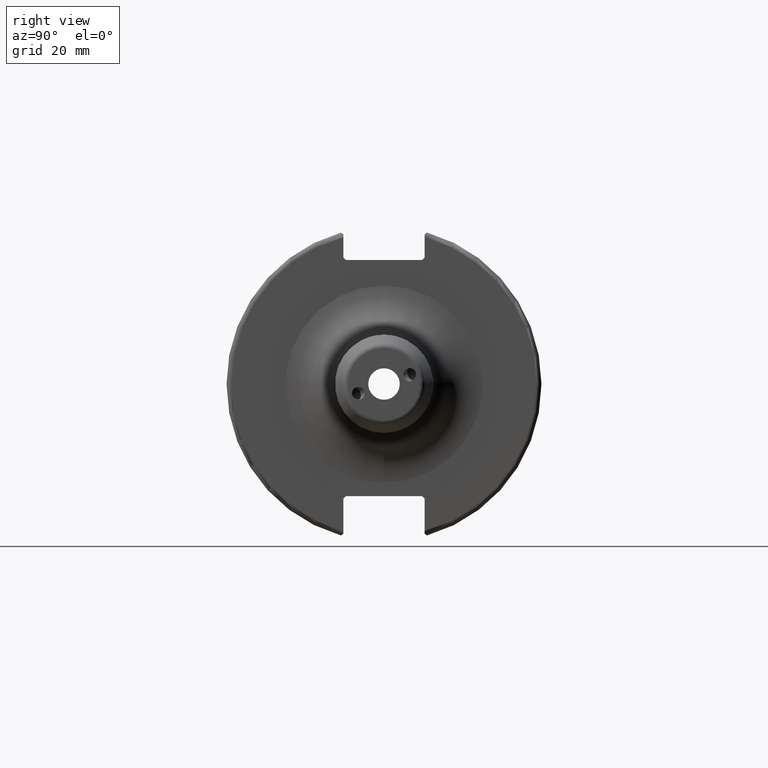
[diagram: clean part render]
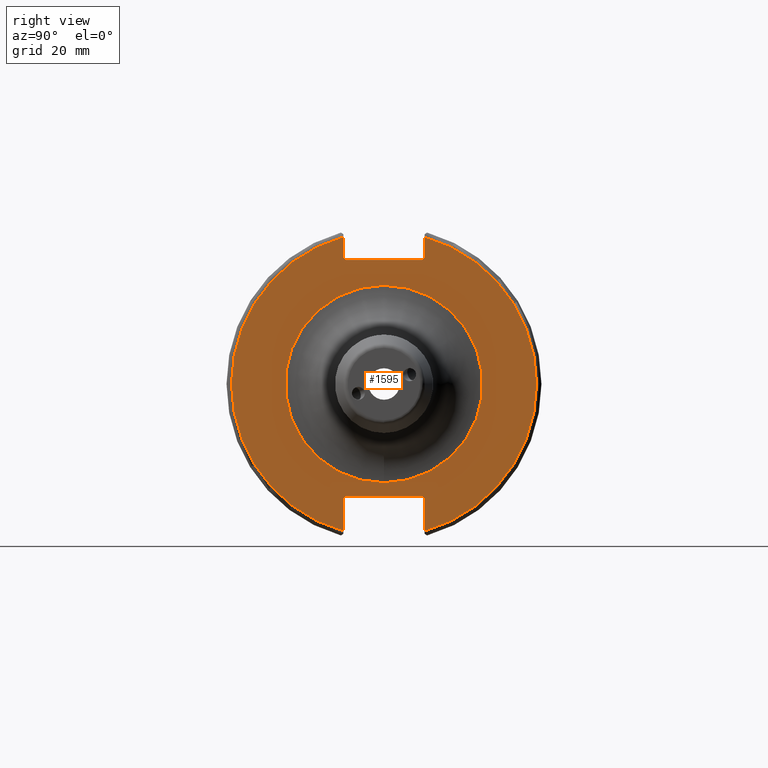
[diagram: same view with one face highlighted and labeled with its STEP entity id]
A machine part, right view. The second image highlights one B-rep face of the part: STEP entity #1595.
In plain terms, the highlighted planar face has unit normal (1, 0, 0).
Its self-contained STEP definition (entity closure, byte-faithful):
#64=FACE_BOUND('',#303,.T.);
#77=PLANE('',#1739);
#128=CIRCLE('',#1738,19.906);
#129=CIRCLE('',#1740,30.75);
#130=CIRCLE('',#1741,30.75);
#202=FACE_OUTER_BOUND('',#302,.T.);
#302=EDGE_LOOP('',(#1154,#1155,#1156,#1157,#1158,#1159,#1160,#1161,#1162,
#1163,#1164,#1165));
#303=EDGE_LOOP('',(#1166));
#439=LINE('',#2698,#538);
#440=LINE('',#2700,#539);
#441=LINE('',#2702,#540);
#442=LINE('',#2704,#541);
#443=LINE('',#2706,#542);
#444=LINE('',#2710,#543);
#445=LINE('',#2712,#544);
#446=LINE('',#2714,#545);
#447=LINE('',#2716,#546);
#448=LINE('',#2717,#547);
#538=VECTOR('',#1991,10.);
#539=VECTOR('',#1992,10.);
#540=VECTOR('',#1993,10.);
#541=VECTOR('',#1994,10.);
#542=VECTOR('',#1995,10.);
#543=VECTOR('',#1998,10.);
#544=VECTOR('',#1999,10.);
#545=VECTOR('',#2000,10.);
#546=VECTOR('',#2001,10.);
#547=VECTOR('',#2002,10.);
#682=VERTEX_POINT('',#2690);
#683=VERTEX_POINT('',#2694);
#684=VERTEX_POINT('',#2695);
#685=VERTEX_POINT('',#2697);
#686=VERTEX_POINT('',#2699);
#687=VERTEX_POINT('',#2701);
#688=VERTEX_POINT('',#2703);
#689=VERTEX_POINT('',#2705);
#690=VERTEX_POINT('',#2707);
#691=VERTEX_POINT('',#2709);
#692=VERTEX_POINT('',#2711);
#693=VERTEX_POINT('',#2713);
#694=VERTEX_POINT('',#2715);
#861=EDGE_CURVE('',#682,#682,#128,.T.);
#862=EDGE_CURVE('',#683,#684,#129,.T.);
#863=EDGE_CURVE('',#683,#685,#439,.T.);
#864=EDGE_CURVE('',#686,#685,#440,.T.);
#865=EDGE_CURVE('',#686,#687,#441,.T.);
#866=EDGE_CURVE('',#688,#687,#442,.T.);
#867=EDGE_CURVE('',#688,#689,#443,.T.);
#868=EDGE_CURVE('',#690,#689,#130,.T.);
#869=EDGE_CURVE('',#690,#691,#444,.T.);
#870=EDGE_CURVE('',#692,#691,#445,.T.);
#871=EDGE_CURVE('',#692,#693,#446,.T.);
#872=EDGE_CURVE('',#694,#693,#447,.T.);
#873=EDGE_CURVE('',#694,#684,#448,.T.);
#1154=ORIENTED_EDGE('',*,*,#862,.F.);
#1155=ORIENTED_EDGE('',*,*,#863,.T.);
#1156=ORIENTED_EDGE('',*,*,#864,.F.);
#1157=ORIENTED_EDGE('',*,*,#865,.T.);
#1158=ORIENTED_EDGE('',*,*,#866,.F.);
#1159=ORIENTED_EDGE('',*,*,#867,.T.);
#1160=ORIENTED_EDGE('',*,*,#868,.F.);
#1161=ORIENTED_EDGE('',*,*,#869,.T.);
#1162=ORIENTED_EDGE('',*,*,#870,.F.);
#1163=ORIENTED_EDGE('',*,*,#871,.T.);
#1164=ORIENTED_EDGE('',*,*,#872,.F.);
#1165=ORIENTED_EDGE('',*,*,#873,.T.);
#1166=ORIENTED_EDGE('',*,*,#861,.F.);
#1595=ADVANCED_FACE('',(#202,#64),#77,.T.);
#1738=AXIS2_PLACEMENT_3D('',#2692,#1985,#1986);
#1739=AXIS2_PLACEMENT_3D('',#2693,#1987,#1988);
#1740=AXIS2_PLACEMENT_3D('',#2696,#1989,#1990);
#1741=AXIS2_PLACEMENT_3D('',#2708,#1996,#1997);
#1985=DIRECTION('center_axis',(1.,0.,0.));
#1986=DIRECTION('ref_axis',(0.,1.22464679914735E-16,-1.));
#1987=DIRECTION('center_axis',(1.,0.,0.));
#1988=DIRECTION('ref_axis',(0.,0.,-1.));
#1989=DIRECTION('center_axis',(-1.,0.,0.));
#1990=DIRECTION('ref_axis',(0.,1.,-6.12323399573677E-17));
#1991=DIRECTION('',(0.,0.,-1.));
#1992=DIRECTION('',(0.,0.707106781186549,0.707106781186546));
#1993=DIRECTION('',(0.,-1.,0.));
#1994=DIRECTION('',(0.,0.70710678118655,-0.707106781186545));
#1995=DIRECTION('',(0.,0.,1.));
#1996=DIRECTION('center_axis',(-1.,0.,0.));
#1997=DIRECTION('ref_axis',(0.,-1.,1.60812264967664E-16));
#1998=DIRECTION('',(0.,0.,1.));
#1999=DIRECTION('',(0.,-0.707106781186549,-0.707106781186546));
#2000=DIRECTION('',(0.,1.,0.));
#2001=DIRECTION('',(0.,-0.707106781186549,0.707106781186546));
#2002=DIRECTION('',(0.,0.,-1.));
#2690=CARTESIAN_POINT('',(19.05,-2.43778191838272E-15,-19.906));
#2692=CARTESIAN_POINT('Origin',(19.05,0.,0.));
#2693=CARTESIAN_POINT('Origin',(19.05,0.,0.));
#2694=CARTESIAN_POINT('',(19.05,8.19,29.6392712461019));
#2695=CARTESIAN_POINT('',(19.05,8.19,-29.6392712461019));
#2696=CARTESIAN_POINT('Origin',(19.05,0.,0.));
#2697=CARTESIAN_POINT('',(19.05,8.19,25.5));
#2698=CARTESIAN_POINT('',(19.05,8.19,12.5));
#2699=CARTESIAN_POINT('',(19.05,7.69,25.));
#2700=CARTESIAN_POINT('',(19.05,-0.35750000000001,16.9525));
#2701=CARTESIAN_POINT('',(19.05,-7.69,25.));
#2702=CARTESIAN_POINT('',(19.05,0.,25.));
#2703=CARTESIAN_POINT('',(19.05,-8.19,25.5));
#2704=CARTESIAN_POINT('',(19.05,0.357500000000014,16.9525));
#2705=CARTESIAN_POINT('',(19.05,-8.19,29.6392712461019));
#2706=CARTESIAN_POINT('',(19.05,-8.19,12.5));
#2707=CARTESIAN_POINT('',(19.05,-8.19,-29.6392712461019));
#2708=CARTESIAN_POINT('Origin',(19.05,0.,0.));
#2709=CARTESIAN_POINT('',(19.05,-8.19,-23.1));
#2710=CARTESIAN_POINT('',(19.05,-8.19,-11.3));
#2711=CARTESIAN_POINT('',(19.05,-7.69,-22.6));
#2712=CARTESIAN_POINT('',(19.05,-0.242499999999991,-15.1525));
#2713=CARTESIAN_POINT('',(19.05,7.69,-22.6));
#2714=CARTESIAN_POINT('',(19.05,-2.77555756156289E-16,-22.6));
#2715=CARTESIAN_POINT('',(19.05,8.19,-23.1));
#2716=CARTESIAN_POINT('',(19.05,0.242499999999989,-15.1525));
#2717=CARTESIAN_POINT('',(19.05,8.19,-11.3));